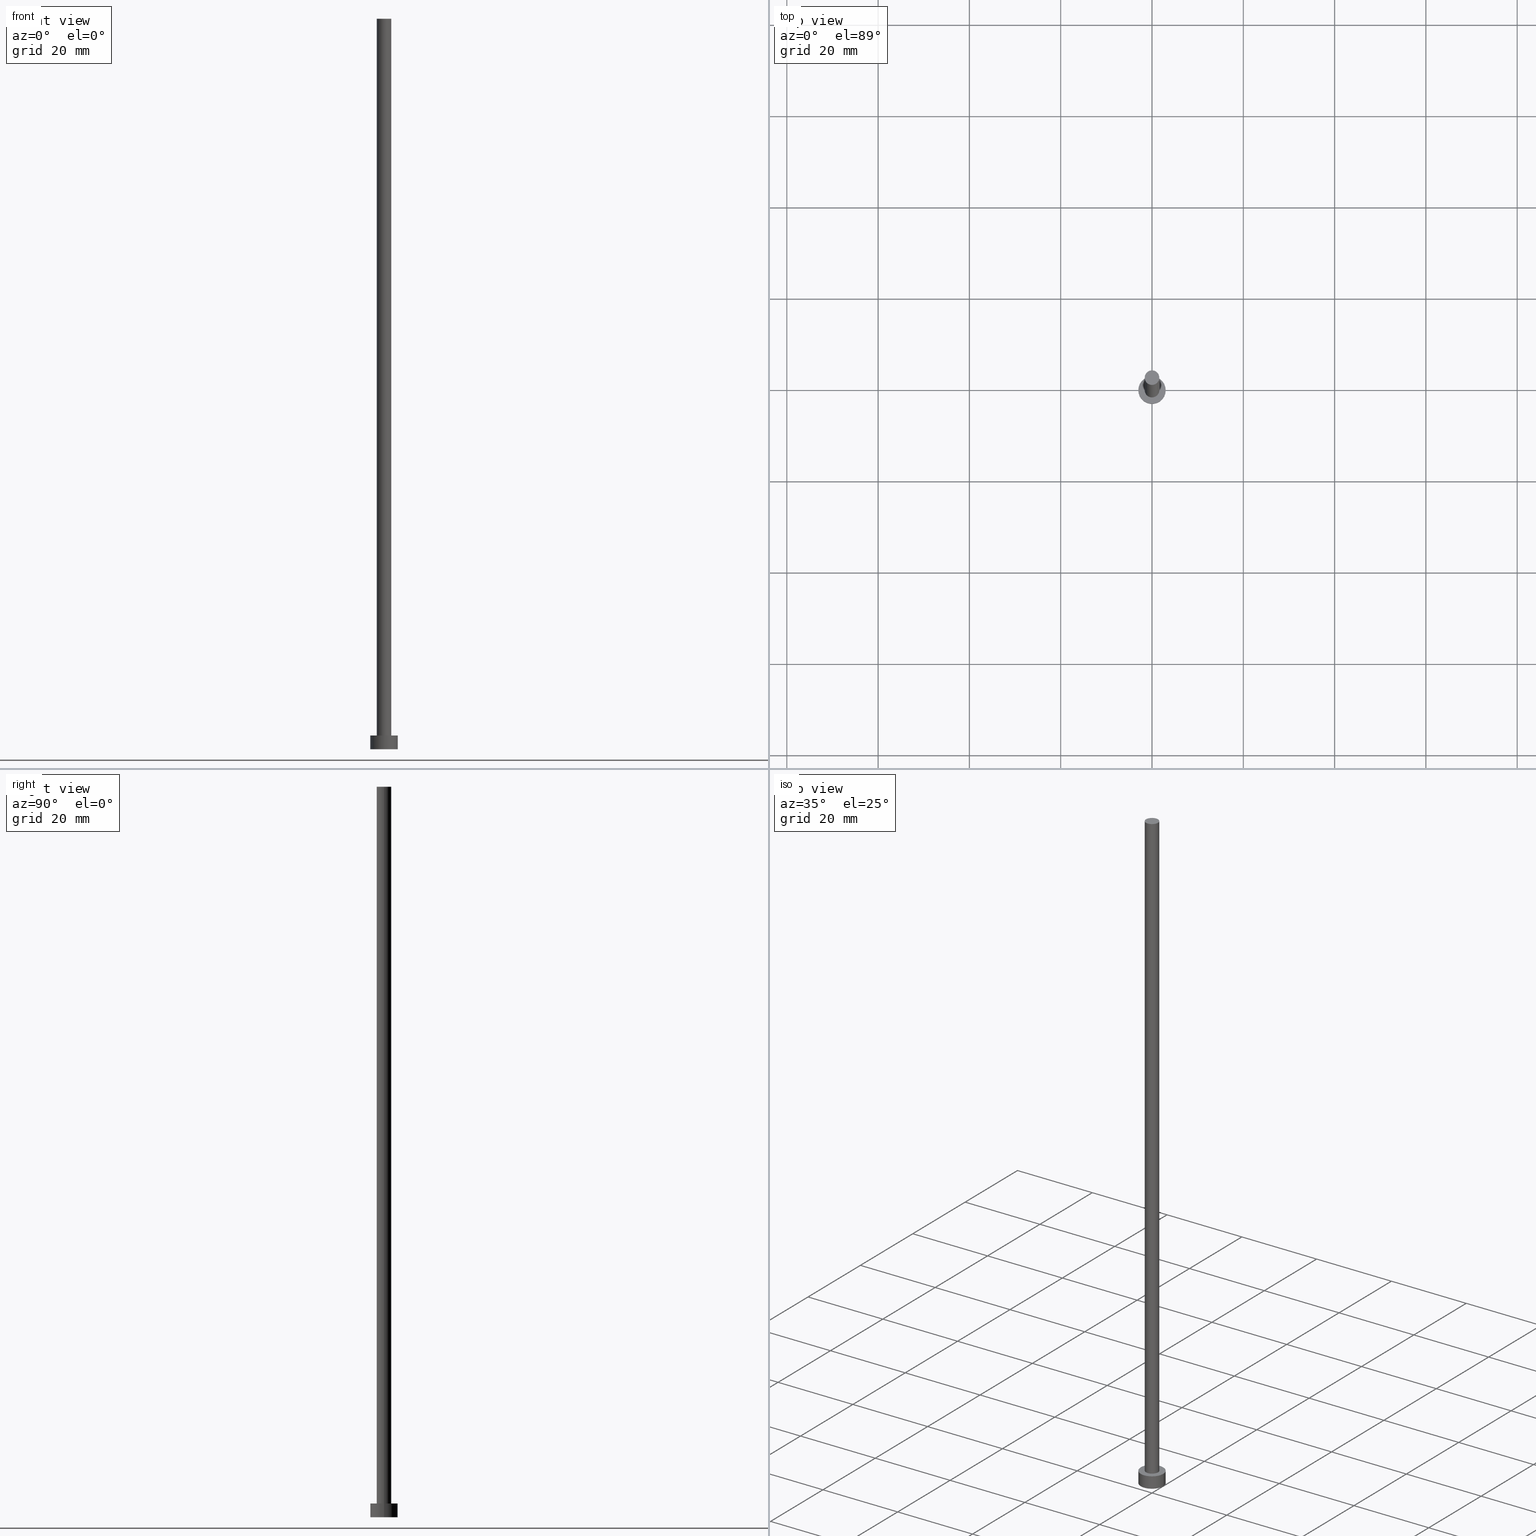
[diagram: canonical four-view strip — front | top / right | iso, engineering-drawing reading convention]
A machine part, canonical four-view strip (front | top / right | iso — engineering-drawing reading convention). The complete STEP part file that produces these views, byte-faithful:
ISO-10303-21;
HEADER;
FILE_DESCRIPTION (( 'STEP AP203' ),
    '1' );
FILE_NAME ('19db.STEP',
    '2023-02-13T14:25:35',
    ( '' ),
    ( '' ),
    'SwSTEP 2.0',
    'SolidWorks 2019',
    '' );
FILE_SCHEMA (( 'CONFIG_CONTROL_DESIGN' ));
ENDSEC;

DATA;
#1 = CC_DESIGN_PERSON_AND_ORGANIZATION_ASSIGNMENT ( #146, #24, ( #112 ) ) ;
#2 = DIRECTION ( 'NONE',  ( -0.000000000000000000, -0.000000000000000000, -1.000000000000000000 ) ) ;
#3 = COORDINATED_UNIVERSAL_TIME_OFFSET ( 1, 0, .AHEAD. ) ;
#4 = EDGE_CURVE ( 'NONE', #37, #213, #68, .T. ) ;
#5 = ORGANIZATION ( 'NEUR�EN�', 'NEUR�EN�', '' ) ;
#6 = PERSON_AND_ORGANIZATION_ROLE ( 'design_supplier' ) ;
#7 = PERSON_AND_ORGANIZATION ( #8, #5 ) ;
#8 = PERSON ( 'NEUR�EN�', 'NEUR�EN�', 'NEUR�EN�', ('NEUR�EN�'), ('NEUR�EN�'), ('NEUR�EN�') ) ;
#9 = FACE_OUTER_BOUND ( 'NONE', #131, .T. ) ;
#10 = EDGE_LOOP ( 'NONE', ( #34, #55, #234, #210 ) ) ;
#11 = DIRECTION ( 'NONE',  ( 1.000000000000000000, 0.000000000000000000, 0.000000000000000000 ) ) ;
#12 =( GEOMETRIC_REPRESENTATION_CONTEXT ( 3 ) GLOBAL_UNCERTAINTY_ASSIGNED_CONTEXT ( ( #232 ) ) GLOBAL_UNIT_ASSIGNED_CONTEXT ( ( #205, #184, #113 ) ) REPRESENTATION_CONTEXT ( 'NONE', 'WORKASPACE' ) );
#13 = DATE_AND_TIME ( #212, #49 ) ;
#14 = DESIGN_CONTEXT ( 'detailed design', #191, 'design' ) ;
#15 = ORIENTED_EDGE ( 'NONE', *, *, #35, .T. ) ;
#16 = DIRECTION ( 'NONE',  ( 1.000000000000000000, 0.000000000000000000, 0.000000000000000000 ) ) ;
#17 = DIRECTION ( 'NONE',  ( -1.000000000000000000, 0.000000000000000000, 0.000000000000000000 ) ) ;
#18 = AXIS2_PLACEMENT_3D ( 'NONE', #157, #142, #16 ) ;
#19 = ADVANCED_BREP_SHAPE_REPRESENTATION ( '19db', ( #202, #33 ), #12 ) ;
#20 = CYLINDRICAL_SURFACE ( 'NONE', #129, 3.000000000000000444 ) ;
#21 = DIRECTION ( 'NONE',  ( -0.000000000000000000, -0.000000000000000000, -1.000000000000000000 ) ) ;
#22 = EDGE_CURVE ( 'NONE', #73, #172, #96, .T. ) ;
#23 = CARTESIAN_POINT ( 'NONE',  ( 0.000000000000000000, 0.000000000000000000, 0.000000000000000000 ) ) ;
#24 = PERSON_AND_ORGANIZATION_ROLE ( 'classification_officer' ) ;
#25 = APPROVAL_DATE_TIME ( #90, #200 ) ;
#26 = AXIS2_PLACEMENT_3D ( 'NONE', #255, #83, #254 ) ;
#27 = PERSON_AND_ORGANIZATION ( #8, #5 ) ;
#28 = CIRCLE ( 'NONE', #87, 3.000000000000000444 ) ;
#29 = APPROVAL_DATE_TIME ( #242, #30 ) ;
#30 = APPROVAL ( #206, 'NEUR�EN�' ) ;
#31 = CLOSED_SHELL ( 'NONE', ( #229, #64, #243, #80, #84, #185, #89 ) ) ;
#32 = ORIENTED_EDGE ( 'NONE', *, *, #153, .T. ) ;
#33 = AXIS2_PLACEMENT_3D ( 'NONE', #223, #179, #44 ) ;
#34 = ORIENTED_EDGE ( 'NONE', *, *, #153, .F. ) ;
#35 = EDGE_CURVE ( 'NONE', #231, #213, #207, .T. ) ;
#36 = CARTESIAN_POINT ( 'NONE',  ( 0.000000000000000000, 0.000000000000000000, 0.000000000000000000 ) ) ;
#37 = VERTEX_POINT ( 'NONE', #187 ) ;
#38 = ORIENTED_EDGE ( 'NONE', *, *, #92, .F. ) ;
#39 = CARTESIAN_POINT ( 'NONE',  ( 0.000000000000000000, 0.000000000000000000, 3.000000000000000000 ) ) ;
#40 = CARTESIAN_POINT ( 'NONE',  ( -1.600000000000000089, 0.000000000000000000, 3.000000000000000000 ) ) ;
#41 = DIRECTION ( 'NONE',  ( 1.000000000000000000, 0.000000000000000000, 0.000000000000000000 ) ) ;
#42 = FACE_BOUND ( 'NONE', #189, .T. ) ;
#43 = CARTESIAN_POINT ( 'NONE',  ( -1.600000000000000089, 0.000000000000000000, 160.0000000000000000 ) ) ;
#44 = DIRECTION ( 'NONE',  ( 1.000000000000000000, 0.000000000000000000, 0.000000000000000000 ) ) ;
#45 = APPROVAL_PERSON_ORGANIZATION ( #7, #30, #180 ) ;
#46 = APPLICATION_PROTOCOL_DEFINITION ( 'international standard', 'config_control_design', 1994, #191 ) ;
#47 = CIRCLE ( 'NONE', #18, 3.000000000000000444 ) ;
#48 = PERSON_AND_ORGANIZATION ( #8, #5 ) ;
#49 = LOCAL_TIME ( 15, 25, 35.00000000000000000, #3 ) ;
#50 = CC_DESIGN_PERSON_AND_ORGANIZATION_ASSIGNMENT ( #114, #66, ( #150 ) ) ;
#51 = CC_DESIGN_PERSON_AND_ORGANIZATION_ASSIGNMENT ( #65, #6, ( #150 ) ) ;
#52 = CIRCLE ( 'NONE', #226, 1.600000000000000089 ) ;
#53 = EDGE_LOOP ( 'NONE', ( #192, #134, #15, #169 ) ) ;
#54 = ORIENTED_EDGE ( 'NONE', *, *, #92, .T. ) ;
#55 = ORIENTED_EDGE ( 'NONE', *, *, #251, .F. ) ;
#56 = AXIS2_PLACEMENT_3D ( 'NONE', #85, #252, #17 ) ;
#57 = FACE_OUTER_BOUND ( 'NONE', #152, .T. ) ;
#58 = FACE_OUTER_BOUND ( 'NONE', #53, .T. ) ;
#59 = CARTESIAN_POINT ( 'NONE',  ( 3.000000000000000444, 3.673940397442060361E-16, 3.000000000000000000 ) ) ;
#60 = CC_DESIGN_APPROVAL ( #200, ( #188 ) ) ;
#61 = DIRECTION ( 'NONE',  ( -0.000000000000000000, -0.000000000000000000, -1.000000000000000000 ) ) ;
#62 = LINE ( 'NONE', #138, #148 ) ;
#63 = APPLICATION_CONTEXT ( 'configuration controlled 3d designs of mechanical parts and assemblies' ) ;
#64 = ADVANCED_FACE ( 'NONE', ( #9 ), #93, .T. ) ;
#65 = PERSON_AND_ORGANIZATION ( #8, #5 ) ;
#66 = PERSON_AND_ORGANIZATION_ROLE ( 'creator' ) ;
#67 = DATE_TIME_ROLE ( 'classification_date' ) ;
#68 = CIRCLE ( 'NONE', #225, 3.000000000000000444 ) ;
#69 = CALENDAR_DATE ( 2023, 13, 2 ) ;
#70 = APPROVAL_DATE_TIME ( #13, #110 ) ;
#71 = DIRECTION ( 'NONE',  ( -0.000000000000000000, -0.000000000000000000, -1.000000000000000000 ) ) ;
#72 = AXIS2_PLACEMENT_3D ( 'NONE', #137, #197, #41 ) ;
#73 = VERTEX_POINT ( 'NONE', #43 ) ;
#74 = CC_DESIGN_APPROVAL ( #30, ( #150 ) ) ;
#75 = ORIENTED_EDGE ( 'NONE', *, *, #4, .T. ) ;
#76 = ORIENTED_EDGE ( 'NONE', *, *, #167, .F. ) ;
#77 = ORIENTED_EDGE ( 'NONE', *, *, #251, .T. ) ;
#78 = CARTESIAN_POINT ( 'NONE',  ( -3.000000000000000444, 0.000000000000000000, 3.000000000000000000 ) ) ;
#79 = DIRECTION ( 'NONE',  ( 1.000000000000000000, 0.000000000000000000, -0.000000000000000000 ) ) ;
#80 = ADVANCED_FACE ( 'NONE', ( #42, #156 ), #217, .T. ) ;
#81 = CARTESIAN_POINT ( 'NONE',  ( 0.000000000000000000, 0.000000000000000000, 160.0000000000000000 ) ) ;
#82 = VECTOR ( 'NONE', #61, 1000.000000000000000 ) ;
#83 = DIRECTION ( 'NONE',  ( 0.000000000000000000, 0.000000000000000000, 1.000000000000000000 ) ) ;
#84 = ADVANCED_FACE ( 'NONE', ( #57 ), #218, .F. ) ;
#85 = CARTESIAN_POINT ( 'NONE',  ( 0.000000000000000000, 0.000000000000000000, 160.0000000000000000 ) ) ;
#86 = APPROVAL_STATUS ( 'not_yet_approved' ) ;
#87 = AXIS2_PLACEMENT_3D ( 'NONE', #175, #162, #100 ) ;
#88 = COORDINATED_UNIVERSAL_TIME_OFFSET ( 1, 0, .AHEAD. ) ;
#89 = ADVANCED_FACE ( 'NONE', ( #194 ), #125, .T. ) ;
#90 = DATE_AND_TIME ( #69, #160 ) ;
#91 = MECHANICAL_CONTEXT ( 'NONE', #63, 'mechanical' ) ;
#92 = EDGE_CURVE ( 'NONE', #228, #172, #101, .T. ) ;
#93 = CYLINDRICAL_SURFACE ( 'NONE', #233, 3.000000000000000444 ) ;
#94 = EDGE_LOOP ( 'NONE', ( #246, #214 ) ) ;
#95 = AXIS2_PLACEMENT_3D ( 'NONE', #39, #123, #120 ) ;
#96 = LINE ( 'NONE', #154, #190 ) ;
#97 = ORIENTED_EDGE ( 'NONE', *, *, #204, .T. ) ;
#98 = CC_DESIGN_DATE_AND_TIME_ASSIGNMENT ( #108, #166, ( #188 ) ) ;
#99 = DIRECTION ( 'NONE',  ( 0.000000000000000000, 0.000000000000000000, 1.000000000000000000 ) ) ;
#100 = DIRECTION ( 'NONE',  ( 1.000000000000000000, 0.000000000000000000, 0.000000000000000000 ) ) ;
#101 = CIRCLE ( 'NONE', #186, 1.600000000000000089 ) ;
#102 = LOCAL_TIME ( 15, 25, 35.00000000000000000, #88 ) ;
#103 = DIRECTION ( 'NONE',  ( -0.000000000000000000, -0.000000000000000000, -1.000000000000000000 ) ) ;
#104 = DIRECTION ( 'NONE',  ( 0.000000000000000000, 0.000000000000000000, 1.000000000000000000 ) ) ;
#105 = DIRECTION ( 'NONE',  ( 0.000000000000000000, 0.000000000000000000, 1.000000000000000000 ) ) ;
#106 = CYLINDRICAL_SURFACE ( 'NONE', #56, 1.600000000000000089 ) ;
#107 = APPROVAL_ROLE ( '' ) ;
#108 = DATE_AND_TIME ( #145, #203 ) ;
#109 = PRODUCT_DEFINITION_SHAPE ( 'NONE', 'NONE',  #188 ) ;
#110 = APPROVAL ( #241, 'NEUR�EN�' ) ;
#111 = COORDINATED_UNIVERSAL_TIME_OFFSET ( 1, 0, .AHEAD. ) ;
#112 = SECURITY_CLASSIFICATION ( '', '', #201 ) ;
#113 =( NAMED_UNIT ( * ) SI_UNIT ( $, .STERADIAN. ) SOLID_ANGLE_UNIT ( ) );
#114 = PERSON_AND_ORGANIZATION ( #8, #5 ) ;
#115 = CC_DESIGN_PERSON_AND_ORGANIZATION_ASSIGNMENT ( #183, #130, ( #188 ) ) ;
#116 = AXIS2_PLACEMENT_3D ( 'NONE', #196, #21, #193 ) ;
#117 = CARTESIAN_POINT ( 'NONE',  ( -3.000000000000000444, 0.000000000000000000, 3.000000000000000000 ) ) ;
#118 = CC_DESIGN_SECURITY_CLASSIFICATION ( #112, ( #150 ) ) ;
#119 = ORIENTED_EDGE ( 'NONE', *, *, #195, .F. ) ;
#120 = DIRECTION ( 'NONE',  ( 1.000000000000000000, 0.000000000000000000, 0.000000000000000000 ) ) ;
#121 = FACE_OUTER_BOUND ( 'NONE', #132, .T. ) ;
#122 = AXIS2_PLACEMENT_3D ( 'NONE', #238, #239, #161 ) ;
#123 = DIRECTION ( 'NONE',  ( 0.000000000000000000, 0.000000000000000000, 1.000000000000000000 ) ) ;
#124 = DIRECTION ( 'NONE',  ( 1.000000000000000000, 0.000000000000000000, 0.000000000000000000 ) ) ;
#125 = PLANE ( 'NONE',  #199 ) ;
#126 = PERSON_AND_ORGANIZATION_ROLE ( 'design_owner' ) ;
#127 = DIRECTION ( 'NONE',  ( 1.000000000000000000, 0.000000000000000000, 0.000000000000000000 ) ) ;
#128 = APPROVAL_ROLE ( '' ) ;
#129 = AXIS2_PLACEMENT_3D ( 'NONE', #216, #103, #253 ) ;
#130 = PERSON_AND_ORGANIZATION_ROLE ( 'creator' ) ;
#131 = EDGE_LOOP ( 'NONE', ( #76, #250, #75, #247 ) ) ;
#132 = EDGE_LOOP ( 'NONE', ( #170, #32, #54, #149 ) ) ;
#133 = PRODUCT_RELATED_PRODUCT_CATEGORY ( 'detail', '', ( #221 ) ) ;
#134 = ORIENTED_EDGE ( 'NONE', *, *, #222, .F. ) ;
#135 = VERTEX_POINT ( 'NONE', #176 ) ;
#136 = CARTESIAN_POINT ( 'NONE',  ( -3.000000000000000444, 0.000000000000000000, 0.000000000000000000 ) ) ;
#137 = CARTESIAN_POINT ( 'NONE',  ( 0.000000000000000000, 0.000000000000000000, 3.000000000000000000 ) ) ;
#138 = CARTESIAN_POINT ( 'NONE',  ( 1.600000000000000089, 1.959434878635765230E-16, 160.0000000000000000 ) ) ;
#139 = CIRCLE ( 'NONE', #95, 3.000000000000000444 ) ;
#140 = FACE_OUTER_BOUND ( 'NONE', #10, .T. ) ;
#141 = CC_DESIGN_PERSON_AND_ORGANIZATION_ASSIGNMENT ( #244, #126, ( #221 ) ) ;
#142 = DIRECTION ( 'NONE',  ( 0.000000000000000000, 0.000000000000000000, 1.000000000000000000 ) ) ;
#143 = APPLICATION_PROTOCOL_DEFINITION ( 'international standard', 'config_control_design', 1994, #63 ) ;
#144 = COORDINATED_UNIVERSAL_TIME_OFFSET ( 1, 0, .AHEAD. ) ;
#145 = CALENDAR_DATE ( 2023, 13, 2 ) ;
#146 = PERSON_AND_ORGANIZATION ( #8, #5 ) ;
#147 = DIRECTION ( 'NONE',  ( -1.000000000000000000, 0.000000000000000000, 0.000000000000000000 ) ) ;
#148 = VECTOR ( 'NONE', #2, 1000.000000000000000 ) ;
#149 = ORIENTED_EDGE ( 'NONE', *, *, #22, .F. ) ;
#150 = PRODUCT_DEFINITION_FORMATION_WITH_SPECIFIED_SOURCE ( 'LIBOVOLN�', '', #221, .NOT_KNOWN. ) ;
#151 = CC_DESIGN_DATE_AND_TIME_ASSIGNMENT ( #163, #67, ( #112 ) ) ;
#152 = EDGE_LOOP ( 'NONE', ( #119, #249 ) ) ;
#153 = EDGE_CURVE ( 'NONE', #227, #228, #62, .T. ) ;
#154 = CARTESIAN_POINT ( 'NONE',  ( -1.600000000000000089, 0.000000000000000000, 160.0000000000000000 ) ) ;
#155 = APPROVAL_PERSON_ORGANIZATION ( #48, #110, #107 ) ;
#156 = FACE_OUTER_BOUND ( 'NONE', #94, .T. ) ;
#157 = CARTESIAN_POINT ( 'NONE',  ( 0.000000000000000000, 0.000000000000000000, 0.000000000000000000 ) ) ;
#158 = DIRECTION ( 'NONE',  ( 0.000000000000000000, 0.000000000000000000, 1.000000000000000000 ) ) ;
#159 = EDGE_CURVE ( 'NONE', #172, #228, #181, .T. ) ;
#160 = LOCAL_TIME ( 15, 25, 35.00000000000000000, #111 ) ;
#161 = DIRECTION ( 'NONE',  ( 1.000000000000000000, 0.000000000000000000, 0.000000000000000000 ) ) ;
#162 = DIRECTION ( 'NONE',  ( 0.000000000000000000, 0.000000000000000000, 1.000000000000000000 ) ) ;
#163 = DATE_AND_TIME ( #165, #102 ) ;
#164 = COORDINATED_UNIVERSAL_TIME_OFFSET ( 1, 0, .AHEAD. ) ;
#165 = CALENDAR_DATE ( 2023, 13, 2 ) ;
#166 = DATE_TIME_ROLE ( 'creation_date' ) ;
#167 = EDGE_CURVE ( 'NONE', #135, #231, #139, .T. ) ;
#168 = CARTESIAN_POINT ( 'NONE',  ( 0.000000000000000000, 0.000000000000000000, 3.000000000000000000 ) ) ;
#169 = ORIENTED_EDGE ( 'NONE', *, *, #195, .T. ) ;
#170 = ORIENTED_EDGE ( 'NONE', *, *, #204, .F. ) ;
#171 = APPROVAL_PERSON_ORGANIZATION ( #27, #200, #128 ) ;
#172 = VERTEX_POINT ( 'NONE', #40 ) ;
#173 = ORIENTED_EDGE ( 'NONE', *, *, #159, .F. ) ;
#174 = CARTESIAN_POINT ( 'NONE',  ( 1.600000000000000089, 1.959434878635765230E-16, 160.0000000000000000 ) ) ;
#175 = CARTESIAN_POINT ( 'NONE',  ( 0.000000000000000000, 0.000000000000000000, 3.000000000000000000 ) ) ;
#176 = CARTESIAN_POINT ( 'NONE',  ( 3.000000000000000444, 3.673940397442060361E-16, 3.000000000000000000 ) ) ;
#177 = CARTESIAN_POINT ( 'NONE',  ( 0.000000000000000000, 0.000000000000000000, 160.0000000000000000 ) ) ;
#178 = DIRECTION ( 'NONE',  ( 0.000000000000000000, 0.000000000000000000, 1.000000000000000000 ) ) ;
#179 = DIRECTION ( 'NONE',  ( 0.000000000000000000, 0.000000000000000000, 1.000000000000000000 ) ) ;
#180 = APPROVAL_ROLE ( '' ) ;
#181 = CIRCLE ( 'NONE', #72, 1.600000000000000089 ) ;
#182 = LOCAL_TIME ( 15, 25, 35.00000000000000000, #164 ) ;
#183 = PERSON_AND_ORGANIZATION ( #8, #5 ) ;
#184 =( NAMED_UNIT ( * ) PLANE_ANGLE_UNIT ( ) SI_UNIT ( $, .RADIAN. ) );
#185 = ADVANCED_FACE ( 'NONE', ( #140 ), #236, .T. ) ;
#186 = AXIS2_PLACEMENT_3D ( 'NONE', #215, #105, #124 ) ;
#187 = CARTESIAN_POINT ( 'NONE',  ( 3.000000000000000444, 3.673940397442060361E-16, 0.000000000000000000 ) ) ;
#188 = PRODUCT_DEFINITION ( 'NEZN�M�', '', #150, #14 ) ;
#189 = EDGE_LOOP ( 'NONE', ( #173, #38 ) ) ;
#190 = VECTOR ( 'NONE', #71, 1000.000000000000000 ) ;
#191 = APPLICATION_CONTEXT ( 'configuration controlled 3d designs of mechanical parts and assemblies' ) ;
#192 = ORIENTED_EDGE ( 'NONE', *, *, #248, .F. ) ;
#193 = DIRECTION ( 'NONE',  ( -1.000000000000000000, 0.000000000000000000, 0.000000000000000000 ) ) ;
#194 = FACE_OUTER_BOUND ( 'NONE', #211, .T. ) ;
#195 = EDGE_CURVE ( 'NONE', #213, #37, #47, .T. ) ;
#196 = CARTESIAN_POINT ( 'NONE',  ( 0.000000000000000000, 0.000000000000000000, 160.0000000000000000 ) ) ;
#197 = DIRECTION ( 'NONE',  ( 0.000000000000000000, 0.000000000000000000, 1.000000000000000000 ) ) ;
#198 = CARTESIAN_POINT ( 'NONE',  ( 1.600000000000000089, 1.959434878635765230E-16, 3.000000000000000000 ) ) ;
#199 = AXIS2_PLACEMENT_3D ( 'NONE', #177, #104, #219 ) ;
#200 = APPROVAL ( #86, 'NEUR�EN�' ) ;
#201 = SECURITY_CLASSIFICATION_LEVEL ( 'unclassified' ) ;
#202 = MANIFOLD_SOLID_BREP ( 'P�idat vysunut�m3', #31 ) ;
#203 = LOCAL_TIME ( 15, 25, 35.00000000000000000, #144 ) ;
#204 = EDGE_CURVE ( 'NONE', #227, #73, #209, .T. ) ;
#205 =( LENGTH_UNIT ( ) NAMED_UNIT ( * ) SI_UNIT ( .MILLI., .METRE. ) );
#206 = APPROVAL_STATUS ( 'not_yet_approved' ) ;
#207 = LINE ( 'NONE', #117, #208 ) ;
#208 = VECTOR ( 'NONE', #224, 1000.000000000000000 ) ;
#209 = CIRCLE ( 'NONE', #122, 1.600000000000000089 ) ;
#210 = ORIENTED_EDGE ( 'NONE', *, *, #159, .T. ) ;
#211 = EDGE_LOOP ( 'NONE', ( #77, #97 ) ) ;
#212 = CALENDAR_DATE ( 2023, 13, 2 ) ;
#213 = VERTEX_POINT ( 'NONE', #136 ) ;
#214 = ORIENTED_EDGE ( 'NONE', *, *, #167, .T. ) ;
#215 = CARTESIAN_POINT ( 'NONE',  ( 0.000000000000000000, 0.000000000000000000, 3.000000000000000000 ) ) ;
#216 = CARTESIAN_POINT ( 'NONE',  ( 0.000000000000000000, 0.000000000000000000, 3.000000000000000000 ) ) ;
#217 = PLANE ( 'NONE',  #26 ) ;
#218 = PLANE ( 'NONE',  #220 ) ;
#219 = DIRECTION ( 'NONE',  ( 1.000000000000000000, 0.000000000000000000, -0.000000000000000000 ) ) ;
#220 = AXIS2_PLACEMENT_3D ( 'NONE', #23, #178, #79 ) ;
#221 = PRODUCT ( '19db', '19db', '', ( #91 ) ) ;
#222 = EDGE_CURVE ( 'NONE', #231, #135, #28, .T. ) ;
#223 = CARTESIAN_POINT ( 'NONE',  ( 0.000000000000000000, 0.000000000000000000, 0.000000000000000000 ) ) ;
#224 = DIRECTION ( 'NONE',  ( -0.000000000000000000, -0.000000000000000000, -1.000000000000000000 ) ) ;
#225 = AXIS2_PLACEMENT_3D ( 'NONE', #36, #99, #11 ) ;
#226 = AXIS2_PLACEMENT_3D ( 'NONE', #81, #158, #127 ) ;
#227 = VERTEX_POINT ( 'NONE', #174 ) ;
#228 = VERTEX_POINT ( 'NONE', #198 ) ;
#229 = ADVANCED_FACE ( 'NONE', ( #121 ), #106, .T. ) ;
#230 = SHAPE_DEFINITION_REPRESENTATION ( #109, #19 ) ;
#231 = VERTEX_POINT ( 'NONE', #78 ) ;
#232 = UNCERTAINTY_MEASURE_WITH_UNIT (LENGTH_MEASURE( 1.000000000000000082E-05 ), #205, 'distance_accuracy_value', 'NONE');
#233 = AXIS2_PLACEMENT_3D ( 'NONE', #168, #245, #147 ) ;
#234 = ORIENTED_EDGE ( 'NONE', *, *, #22, .T. ) ;
#235 = CC_DESIGN_APPROVAL ( #110, ( #112 ) ) ;
#236 = CYLINDRICAL_SURFACE ( 'NONE', #116, 1.600000000000000089 ) ;
#237 = LINE ( 'NONE', #59, #82 ) ;
#238 = CARTESIAN_POINT ( 'NONE',  ( 0.000000000000000000, 0.000000000000000000, 160.0000000000000000 ) ) ;
#239 = DIRECTION ( 'NONE',  ( 0.000000000000000000, 0.000000000000000000, 1.000000000000000000 ) ) ;
#240 = CALENDAR_DATE ( 2023, 13, 2 ) ;
#241 = APPROVAL_STATUS ( 'not_yet_approved' ) ;
#242 = DATE_AND_TIME ( #240, #182 ) ;
#243 = ADVANCED_FACE ( 'NONE', ( #58 ), #20, .T. ) ;
#244 = PERSON_AND_ORGANIZATION ( #8, #5 ) ;
#245 = DIRECTION ( 'NONE',  ( -0.000000000000000000, -0.000000000000000000, -1.000000000000000000 ) ) ;
#246 = ORIENTED_EDGE ( 'NONE', *, *, #222, .T. ) ;
#247 = ORIENTED_EDGE ( 'NONE', *, *, #35, .F. ) ;
#248 = EDGE_CURVE ( 'NONE', #135, #37, #237, .T. ) ;
#249 = ORIENTED_EDGE ( 'NONE', *, *, #4, .F. ) ;
#250 = ORIENTED_EDGE ( 'NONE', *, *, #248, .T. ) ;
#251 = EDGE_CURVE ( 'NONE', #73, #227, #52, .T. ) ;
#252 = DIRECTION ( 'NONE',  ( -0.000000000000000000, -0.000000000000000000, -1.000000000000000000 ) ) ;
#253 = DIRECTION ( 'NONE',  ( -1.000000000000000000, 0.000000000000000000, 0.000000000000000000 ) ) ;
#254 = DIRECTION ( 'NONE',  ( 1.000000000000000000, 0.000000000000000000, -0.000000000000000000 ) ) ;
#255 = CARTESIAN_POINT ( 'NONE',  ( 0.000000000000000000, 0.000000000000000000, 3.000000000000000000 ) ) ;
ENDSEC;
END-ISO-10303-21;
